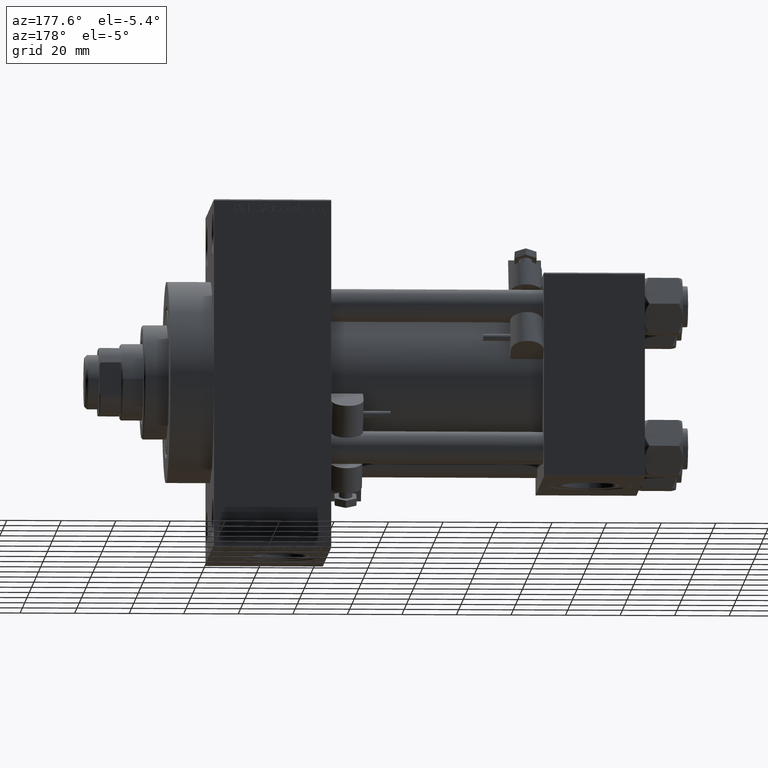
[diagram: clean part render]
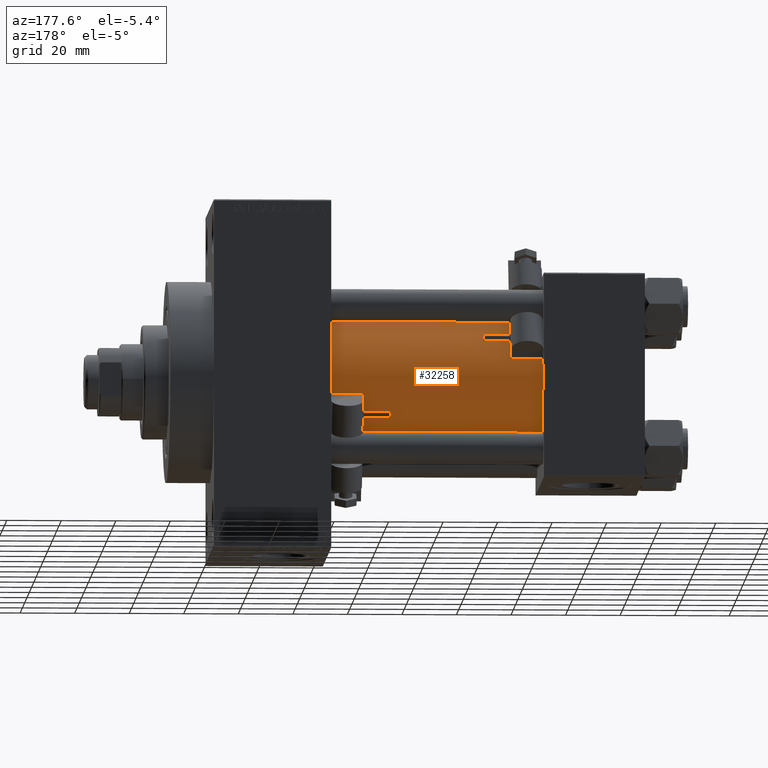
[diagram: same view with one face highlighted and labeled with its STEP entity id]
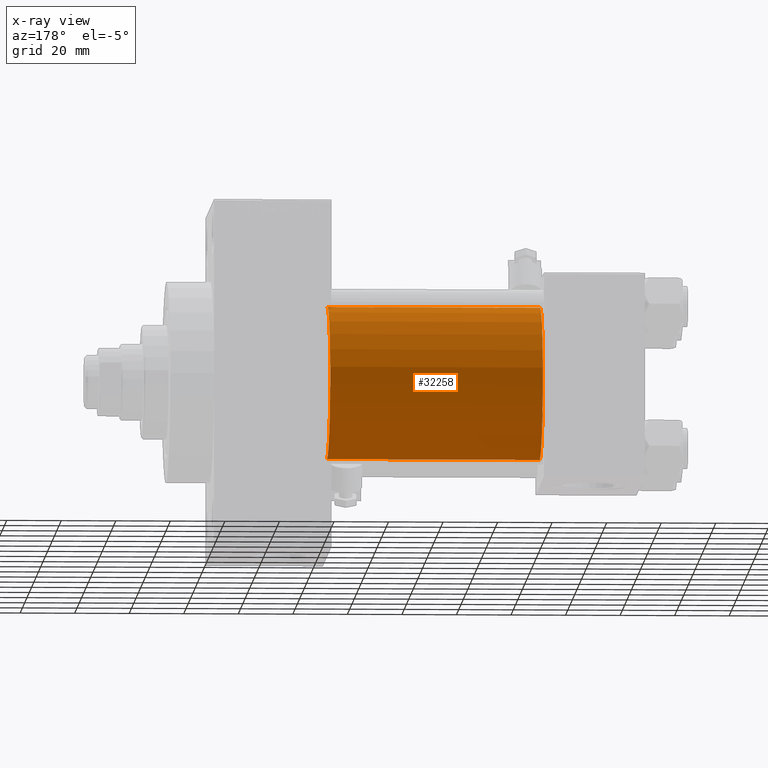
[diagram: x-ray of the same camera — body ghosted, the highlighted face saturated]
A machine part, auxiliary view. The second image highlights one B-rep face of the part: STEP entity #32258.
The next image is the same camera in x-ray: the body ghosted, the highlighted face saturated — about 1% of this face is hidden behind the body in this view.
In plain terms, the highlighted cylindrical surface (partial cylindrical patch) has radius 28 mm, axis along (-1, -0, -0).
Its self-contained STEP definition (entity closure, byte-faithful):
#759 = CARTESIAN_POINT ( 'NONE',  ( 37.00000000000000711, 8.269258236473784371E-16, -28.00000000000000000 ) ) ;
#1378 = EDGE_CURVE ( 'NONE', #50858, #15256, #51735, .T. ) ;
#1536 = ORIENTED_EDGE ( 'NONE', *, *, #30881, .T. ) ;
#2836 = CYLINDRICAL_SURFACE ( 'NONE', #39136, 28.00000000000000000 ) ;
#5910 = LINE ( 'NONE', #30220, #33535 ) ;
#5992 = DIRECTION ( 'NONE',  ( 1.000000000000000000, 0.000000000000000000, 0.000000000000000000 ) ) ;
#7903 = VERTEX_POINT ( 'NONE', #9871 ) ;
#9871 = CARTESIAN_POINT ( 'NONE',  ( 37.00000000000000711, -2.602085213965210642E-15, 28.00000000000000000 ) ) ;
#10288 = LINE ( 'NONE', #14986, #22504 ) ;
#10918 = CARTESIAN_POINT ( 'NONE',  ( 114.9999999999999858, -2.602085213965210642E-15, 28.00000000000000000 ) ) ;
#11180 = DIRECTION ( 'NONE',  ( 0.000000000000000000, 0.000000000000000000, -1.000000000000000000 ) ) ;
#13629 = EDGE_LOOP ( 'NONE', ( #18319, #26509, #1536, #49912 ) ) ;
#14986 = CARTESIAN_POINT ( 'NONE',  ( 114.9999999999999858, -2.602085213965210642E-15, 28.00000000000000000 ) ) ;
#15256 = VERTEX_POINT ( 'NONE', #10918 ) ;
#18319 = ORIENTED_EDGE ( 'NONE', *, *, #1378, .F. ) ;
#18405 = DIRECTION ( 'NONE',  ( -1.000000000000000000, -0.000000000000000000, -0.000000000000000000 ) ) ;
#21517 = CARTESIAN_POINT ( 'NONE',  ( 37.00000000000000711, -2.602085213965210642E-15, 0.000000000000000000 ) ) ;
#21688 = CARTESIAN_POINT ( 'NONE',  ( 114.9999999999999858, -2.602085213965210642E-15, 0.000000000000000000 ) ) ;
#22504 = VECTOR ( 'NONE', #18405, 1000.000000000000000 ) ;
#22833 = CIRCLE ( 'NONE', #32025, 28.00000000000000000 ) ;
#24534 = EDGE_CURVE ( 'NONE', #15256, #7903, #10288, .T. ) ;
#26509 = ORIENTED_EDGE ( 'NONE', *, *, #28704, .T. ) ;
#27377 = CARTESIAN_POINT ( 'NONE',  ( 114.9999999999999858, 8.269258236473784371E-16, -28.00000000000000000 ) ) ;
#28612 = DIRECTION ( 'NONE',  ( 1.000000000000000000, -0.000000000000000000, 0.000000000000000000 ) ) ;
#28704 = EDGE_CURVE ( 'NONE', #50858, #44507, #5910, .T. ) ;
#29185 = AXIS2_PLACEMENT_3D ( 'NONE', #42059, #5992, #11180 ) ;
#30220 = CARTESIAN_POINT ( 'NONE',  ( 114.9999999999999858, 8.269258236473784371E-16, -28.00000000000000000 ) ) ;
#30881 = EDGE_CURVE ( 'NONE', #44507, #7903, #22833, .T. ) ;
#30999 = DIRECTION ( 'NONE',  ( -1.000000000000000000, -0.000000000000000000, -0.000000000000000000 ) ) ;
#32025 = AXIS2_PLACEMENT_3D ( 'NONE', #21517, #28612, #37474 ) ;
#32258 = ADVANCED_FACE ( 'NONE', ( #34495 ), #2836, .T. ) ;
#33535 = VECTOR ( 'NONE', #30999, 1000.000000000000000 ) ;
#34495 = FACE_OUTER_BOUND ( 'NONE', #13629, .T. ) ;
#37474 = DIRECTION ( 'NONE',  ( 0.000000000000000000, 0.000000000000000000, 1.000000000000000000 ) ) ;
#39136 = AXIS2_PLACEMENT_3D ( 'NONE', #21688, #42588, #42842 ) ;
#42059 = CARTESIAN_POINT ( 'NONE',  ( 114.9999999999999858, -2.602085213965210642E-15, 0.000000000000000000 ) ) ;
#42588 = DIRECTION ( 'NONE',  ( -1.000000000000000000, -0.000000000000000000, -0.000000000000000000 ) ) ;
#42842 = DIRECTION ( 'NONE',  ( 0.000000000000000000, 0.000000000000000000, 1.000000000000000000 ) ) ;
#44507 = VERTEX_POINT ( 'NONE', #759 ) ;
#49912 = ORIENTED_EDGE ( 'NONE', *, *, #24534, .F. ) ;
#50858 = VERTEX_POINT ( 'NONE', #27377 ) ;
#51735 = CIRCLE ( 'NONE', #29185, 28.00000000000000000 ) ;